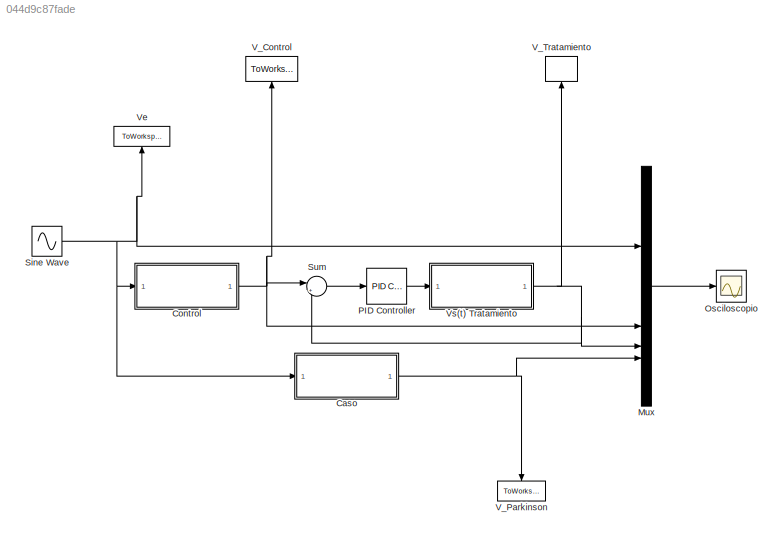
MODEL slx_044d9c87fade
KIND model
CONFIG AbsTol = auto
CONFIG EnableMultiTasking = off
CONFIG FixedStep = auto
CONFIG MaxStep = 1E-3
CONFIG MinStep = auto
CONFIG RelTol = 1e-3
CONFIG SampleTimeConstraint = Unconstrained
CONFIG SolverName = ode15s
CONFIG StartTime = 0.0
CONFIG StopTime = 10.0
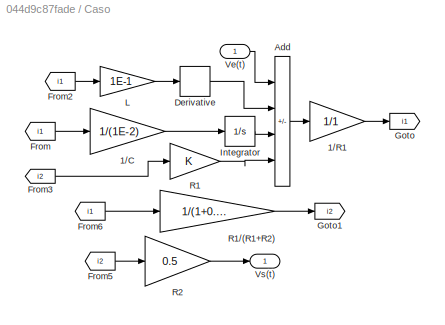
BLOCK [SubSystem] Caso
BLOCK [Gain] Caso/1//C
  Gain = 1/(1E-2)
BLOCK [Gain] Caso/1//R1
  Gain = 1/1
BLOCK [Sum] Caso/Add
  IconShape = rectangular
  Inputs = +--+
BLOCK [Derivative] Caso/Derivative
BLOCK [From] Caso/From
  GotoTag = i1
BLOCK [From] Caso/From2
  GotoTag = i1
  IconDisplay = Signal name
BLOCK [From] Caso/From3
  GotoTag = i2
BLOCK [From] Caso/From5
  GotoTag = i2
  IconDisplay = Signal name
BLOCK [From] Caso/From6
  GotoTag = i1
BLOCK [Goto] Caso/Goto
  GotoTag = i1
BLOCK [Goto] Caso/Goto1
  GotoTag = i2
BLOCK [Integrator] Caso/Integrator
BLOCK [Gain] Caso/L
  Gain = 1E-1
BLOCK [Gain] Caso/R1
BLOCK [Gain] Caso/R1//(R1+R2)
  Gain = 1/(1+0.5)
BLOCK [Gain] Caso/R2
  Gain = 0.5
BLOCK [Inport] Caso/Ve(t)
BLOCK [Outport] Caso/Vs(t)
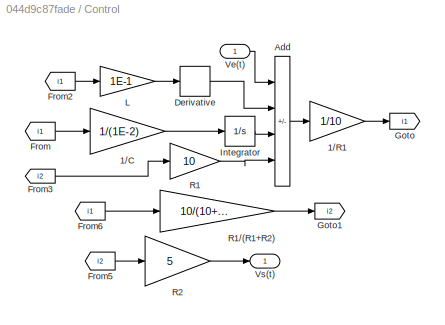
BLOCK [SubSystem] Control
BLOCK [Gain] Control/1//C
  Gain = 1/(1E-2)
BLOCK [Gain] Control/1//R1
  Gain = 1/10
BLOCK [Sum] Control/Add
  IconShape = rectangular
  Inputs = +--+
BLOCK [Derivative] Control/Derivative
BLOCK [From] Control/From
  GotoTag = i1
BLOCK [From] Control/From2
  GotoTag = i1
  IconDisplay = Signal name
BLOCK [From] Control/From3
  GotoTag = i2
BLOCK [From] Control/From5
  GotoTag = i2
  IconDisplay = Signal name
BLOCK [From] Control/From6
  GotoTag = i1
BLOCK [Goto] Control/Goto
  GotoTag = i1
BLOCK [Goto] Control/Goto1
  GotoTag = i2
BLOCK [Integrator] Control/Integrator
BLOCK [Gain] Control/L
  Gain = 1E-1
BLOCK [Gain] Control/R1
  Gain = 10
BLOCK [Gain] Control/R1//(R1+R2)
  Gain = 10/(10+5)
BLOCK [Gain] Control/R2
  Gain = 5
BLOCK [Inport] Control/Ve(t)
BLOCK [Outport] Control/Vs(t)
BLOCK [Mux] Mux
  DisplayOption = bar
BLOCK [Scope] Osciloscopio
  Floating = off
  NumInputPorts = 1
  ScopeSpecificationString = Simulink.scopes.TimeScopeBlockCfg('CurrentConfiguration', extmgr.ConfigurationSet(extmgr.Configuration('Core','General UI',true,'FigureColor',[1 1 1]),extmgr.Configuration('Core','Source UI',true),extmgr.Configuration('Sources','WiredSimulink',true),extmgr.Configuration('Visuals','Time Domain',true,'SerializedDisplays',{struct('MinYLimReal','-6.25','MaxYLimReal','6.25','YLabelReal','V(t) [volts]',...<+1945ch>
BLOCK [Reference] PID Controller  REF=slpidlib/PID Controller
  LibrarySourceBlock = simulink/Continuous/PID Controller
  SourceBlock = slpidlib/PID Controller
  SourceType = PID 1dof
BLOCK [Sin] Sine Wave
  Amplitude = 5
  Frequency = 4
  SampleTime = 0
BLOCK [Sum] Sum
  Inputs = |+-
BLOCK [ToWorkspace] V_Control
  FixptAsFi = on
  MaxDataPoints = inf
  NameLocation = right
  SampleTime = -1
  VariableName = V_Control
BLOCK [ToWorkspace] V_Parkinson
  FixptAsFi = on
  MaxDataPoints = inf
  NameLocation = left
  SampleTime = -1
  VariableName = V_Caso
BLOCK [ToWorkspace] V_Tratamiento
  FixptAsFi = on
  MaxDataPoints = inf
  NameLocation = left
  SampleTime = -1
  VariableName = V_Tratamiento
BLOCK [ToWorkspace] Ve
  FixptAsFi = on
  MaxDataPoints = inf
  NameLocation = left
  SampleTime = -1
  Tag = Ve
  VariableName = Ve
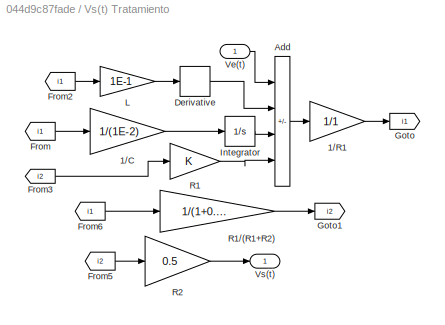
BLOCK [SubSystem] Vs(t) Tratamiento
BLOCK [Gain] Vs(t) Tratamiento/1//C
  Gain = 1/(1E-2)
BLOCK [Gain] Vs(t) Tratamiento/1//R1
  Gain = 1/1
BLOCK [Sum] Vs(t) Tratamiento/Add
  IconShape = rectangular
  Inputs = +--+
BLOCK [Derivative] Vs(t) Tratamiento/Derivative
BLOCK [From] Vs(t) Tratamiento/From
  GotoTag = i1
BLOCK [From] Vs(t) Tratamiento/From2
  GotoTag = i1
  IconDisplay = Signal name
BLOCK [From] Vs(t) Tratamiento/From3
  GotoTag = i2
BLOCK [From] Vs(t) Tratamiento/From5
  GotoTag = i2
  IconDisplay = Signal name
BLOCK [From] Vs(t) Tratamiento/From6
  GotoTag = i1
BLOCK [Goto] Vs(t) Tratamiento/Goto
  GotoTag = i1
BLOCK [Goto] Vs(t) Tratamiento/Goto1
  GotoTag = i2
BLOCK [Integrator] Vs(t) Tratamiento/Integrator
BLOCK [Gain] Vs(t) Tratamiento/L
  Gain = 1E-1
BLOCK [Gain] Vs(t) Tratamiento/R1
BLOCK [Gain] Vs(t) Tratamiento/R1//(R1+R2)
  Gain = 1/(1+0.5)
BLOCK [Gain] Vs(t) Tratamiento/R2
  Gain = 0.5
BLOCK [Inport] Vs(t) Tratamiento/Ve(t)
BLOCK [Outport] Vs(t) Tratamiento/Vs(t)
LINE Caso/1//C:1 -> Caso/Integrator:1
LINE Caso/1//R1:1 -> Caso/Goto:1
LINE Caso/Add:1 -> Caso/1//R1:1
LINE Caso/Derivative:1 -> Caso/Add:2
LINE Caso/From2:1 -> Caso/L:1
LINE Caso/From3:1 -> Caso/R1:1
LINE Caso/From5:1 -> Caso/R2:1
LINE Caso/From6:1 -> Caso/R1//(R1+R2):1
LINE Caso/From:1 -> Caso/1//C:1
LINE Caso/Integrator:1 -> Caso/Add:3
LINE Caso/L:1 -> Caso/Derivative:1
LINE Caso/R1//(R1+R2):1 -> Caso/Goto1:1
LINE Caso/R1:1 -> Caso/Add:4
LINE Caso/R2:1 -> Caso/Vs(t):1
LINE Caso/Ve(t):1 -> Caso/Add:1
NET Caso:1 -> Mux:4, V_Parkinson:1
LINE Control/1//C:1 -> Control/Integrator:1
LINE Control/1//R1:1 -> Control/Goto:1
LINE Control/Add:1 -> Control/1//R1:1
LINE Control/Derivative:1 -> Control/Add:2
LINE Control/From2:1 -> Control/L:1
LINE Control/From3:1 -> Control/R1:1
LINE Control/From5:1 -> Control/R2:1
LINE Control/From6:1 -> Control/R1//(R1+R2):1
LINE Control/From:1 -> Control/1//C:1
LINE Control/Integrator:1 -> Control/Add:3
LINE Control/L:1 -> Control/Derivative:1
LINE Control/R1//(R1+R2):1 -> Control/Goto1:1
LINE Control/R1:1 -> Control/Add:4
LINE Control/R2:1 -> Control/Vs(t):1
LINE Control/Ve(t):1 -> Control/Add:1
NET Control:1 -> Mux:2, Sum:1, V_Control:1
LINE Mux:1 -> Osciloscopio:1
LINE PID Controller:1 -> Vs(t) Tratamiento:1
NET Sine Wave:1 -> Caso:1, Control:1, Mux:1, Ve:1
LINE Sum:1 -> PID Controller:1
LINE Vs(t) Tratamiento/1//C:1 -> Vs(t) Tratamiento/Integrator:1
LINE Vs(t) Tratamiento/1//R1:1 -> Vs(t) Tratamiento/Goto:1
LINE Vs(t) Tratamiento/Add:1 -> Vs(t) Tratamiento/1//R1:1
LINE Vs(t) Tratamiento/Derivative:1 -> Vs(t) Tratamiento/Add:2
LINE Vs(t) Tratamiento/From2:1 -> Vs(t) Tratamiento/L:1
LINE Vs(t) Tratamiento/From3:1 -> Vs(t) Tratamiento/R1:1
LINE Vs(t) Tratamiento/From5:1 -> Vs(t) Tratamiento/R2:1
LINE Vs(t) Tratamiento/From6:1 -> Vs(t) Tratamiento/R1//(R1+R2):1
LINE Vs(t) Tratamiento/From:1 -> Vs(t) Tratamiento/1//C:1
LINE Vs(t) Tratamiento/Integrator:1 -> Vs(t) Tratamiento/Add:3
LINE Vs(t) Tratamiento/L:1 -> Vs(t) Tratamiento/Derivative:1
LINE Vs(t) Tratamiento/R1//(R1+R2):1 -> Vs(t) Tratamiento/Goto1:1
LINE Vs(t) Tratamiento/R1:1 -> Vs(t) Tratamiento/Add:4
LINE Vs(t) Tratamiento/R2:1 -> Vs(t) Tratamiento/Vs(t):1
LINE Vs(t) Tratamiento/Ve(t):1 -> Vs(t) Tratamiento/Add:1
NET Vs(t) Tratamiento:1 -> Mux:3, Sum:2, V_Tratamiento:1
note: NET lines group one-source signal fan-out (src -> all destinations, sorted); 1:1 wires keep LINE
